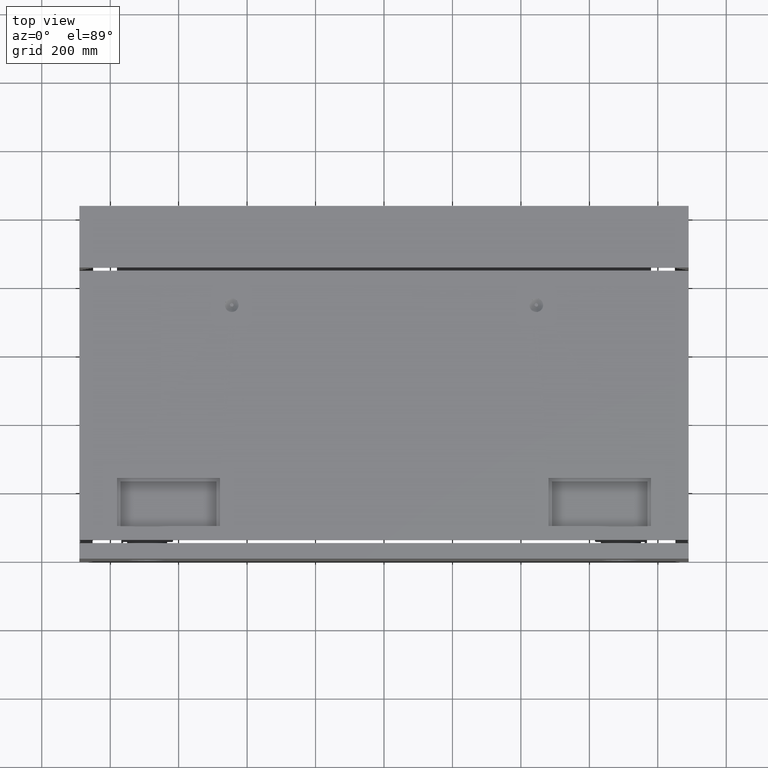
[diagram: clean part render]
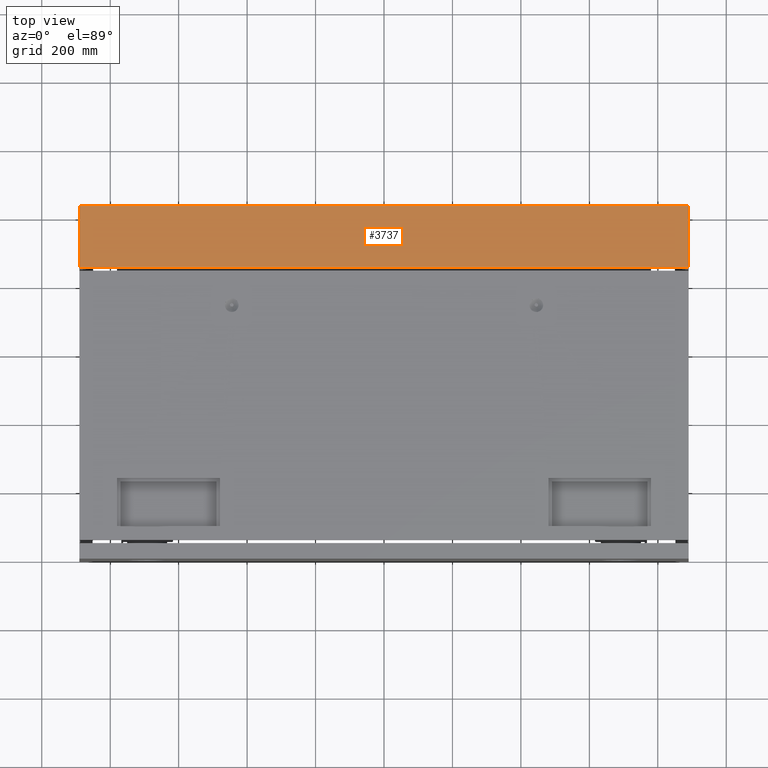
[diagram: same view with one face highlighted and labeled with its STEP entity id]
A machine part, top view. The second image highlights one B-rep face of the part: STEP entity #3737.
In plain terms, the highlighted planar face has unit normal (0, -0, 1).
Its self-contained STEP definition (entity closure, byte-faithful):
#458 = CARTESIAN_POINT ( 'NONE',  ( 890.0000000000000000, 851.0000000000000000, 290.0000000000000000 ) ) ;
#516 = EDGE_LOOP ( 'NONE', ( #12287, #2875, #12368, #2091 ) ) ;
#1018 = CARTESIAN_POINT ( 'NONE',  ( 890.0000000000000000, 1031.000000000000000, 290.0000000000000000 ) ) ;
#1170 = EDGE_CURVE ( 'NONE', #11067, #4247, #3390, .T. ) ;
#1271 = DIRECTION ( 'NONE',  ( -4.336808689942018506E-18, -1.000000000000000000, 0.000000000000000000 ) ) ;
#1921 = LINE ( 'NONE', #3230, #5843 ) ;
#2091 = ORIENTED_EDGE ( 'NONE', *, *, #10095, .T. ) ;
#2234 = CARTESIAN_POINT ( 'NONE',  ( -890.0000000000000000, 851.0000000000000000, 290.0000000000000000 ) ) ;
#2875 = ORIENTED_EDGE ( 'NONE', *, *, #11056, .F. ) ;
#3230 = CARTESIAN_POINT ( 'NONE',  ( -890.0000000000000000, 851.0000000000000000, 290.0000000000000000 ) ) ;
#3390 = LINE ( 'NONE', #9158, #9288 ) ;
#3737 = ADVANCED_FACE ( 'NONE', ( #7348 ), #4324, .T. ) ;
#3834 = DIRECTION ( 'NONE',  ( 1.000000000000000000, -4.336808689942018506E-18, -4.336808689942018506E-18 ) ) ;
#4247 = VERTEX_POINT ( 'NONE', #458 ) ;
#4324 = PLANE ( 'NONE',  #8124 ) ;
#4834 = EDGE_CURVE ( 'NONE', #8068, #12014, #8954, .T. ) ;
#5026 = CARTESIAN_POINT ( 'NONE',  ( -890.0000000000000000, 1031.000000000000000, 290.0000000000000000 ) ) ;
#5843 = VECTOR ( 'NONE', #8994, 1000.000000000000000 ) ;
#7083 = CARTESIAN_POINT ( 'NONE',  ( -890.0000000000000000, 851.0000000000000000, 290.0000000000000000 ) ) ;
#7222 = DIRECTION ( 'NONE',  ( 1.000000000000000000, -4.336808689942018506E-18, -4.336808689942018506E-18 ) ) ;
#7348 = FACE_OUTER_BOUND ( 'NONE', #516, .T. ) ;
#8068 = VERTEX_POINT ( 'NONE', #5026 ) ;
#8124 = AXIS2_PLACEMENT_3D ( 'NONE', #2234, #9008, #1271 ) ;
#8723 = CARTESIAN_POINT ( 'NONE',  ( -890.0000000000000000, 1031.000000000000000, 290.0000000000000000 ) ) ;
#8954 = LINE ( 'NONE', #8723, #10569 ) ;
#8994 = DIRECTION ( 'NONE',  ( 4.336808689942018506E-18, 1.000000000000000000, 0.000000000000000000 ) ) ;
#9008 = DIRECTION ( 'NONE',  ( 4.336808689942018506E-18, -1.880790961315660815E-35, 1.000000000000000000 ) ) ;
#9158 = CARTESIAN_POINT ( 'NONE',  ( -890.0000000000000000, 851.0000000000000000, 290.0000000000000000 ) ) ;
#9288 = VECTOR ( 'NONE', #7222, 1000.000000000000000 ) ;
#10095 = EDGE_CURVE ( 'NONE', #4247, #12014, #11690, .T. ) ;
#10175 = VECTOR ( 'NONE', #11941, 1000.000000000000000 ) ;
#10569 = VECTOR ( 'NONE', #3834, 1000.000000000000000 ) ;
#11056 = EDGE_CURVE ( 'NONE', #11067, #8068, #1921, .T. ) ;
#11059 = CARTESIAN_POINT ( 'NONE',  ( 890.0000000000000000, 851.0000000000000000, 290.0000000000000000 ) ) ;
#11067 = VERTEX_POINT ( 'NONE', #7083 ) ;
#11690 = LINE ( 'NONE', #11059, #10175 ) ;
#11941 = DIRECTION ( 'NONE',  ( 4.336808689942018506E-18, 1.000000000000000000, 0.000000000000000000 ) ) ;
#12014 = VERTEX_POINT ( 'NONE', #1018 ) ;
#12287 = ORIENTED_EDGE ( 'NONE', *, *, #4834, .F. ) ;
#12368 = ORIENTED_EDGE ( 'NONE', *, *, #1170, .T. ) ;